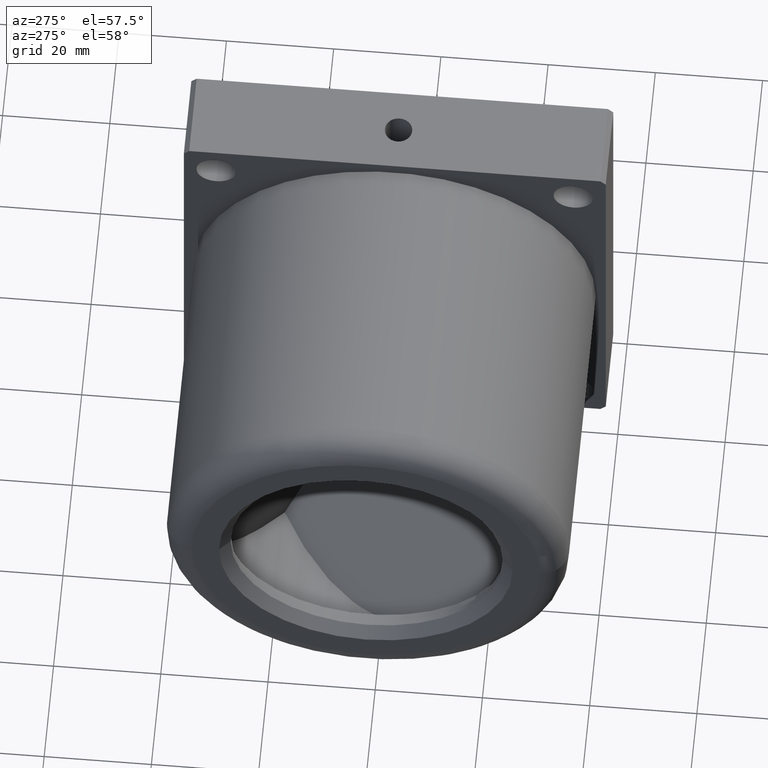
[diagram: clean part render]
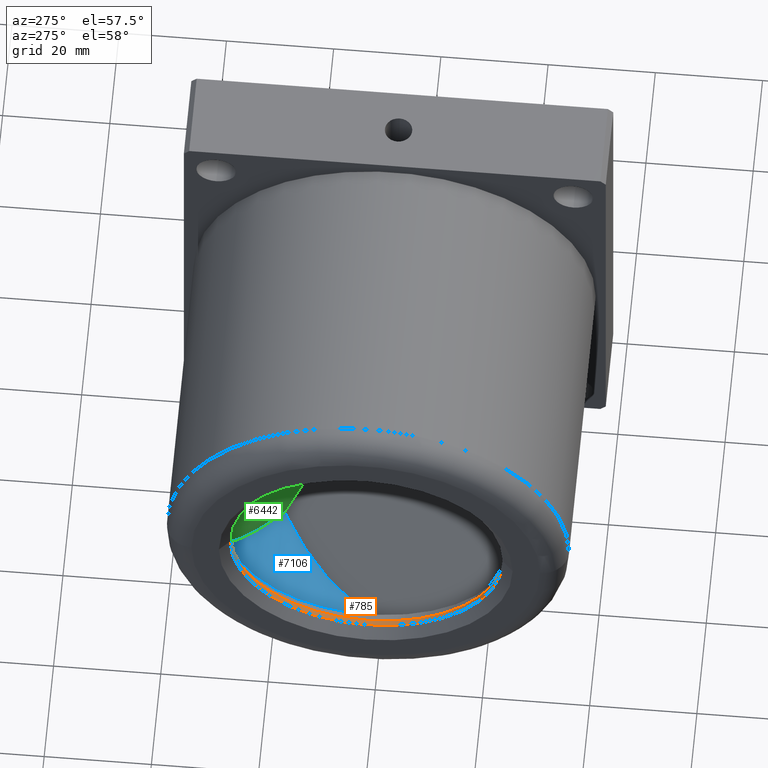
[diagram: same view with three faces highlighted in distinct colors, each labeled with its STEP entity id]
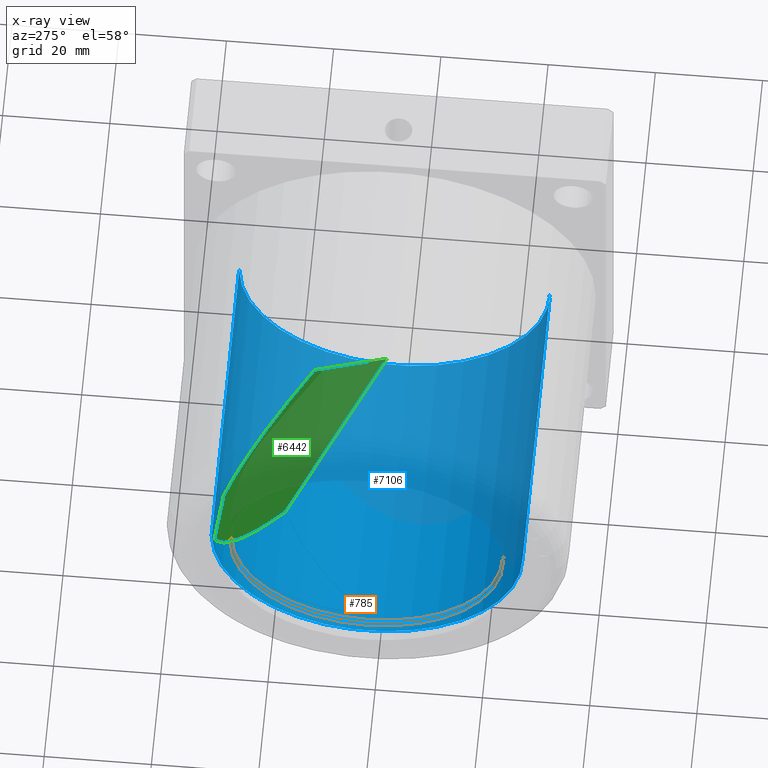
[diagram: x-ray of the same camera — body ghosted, the three highlighted faces saturated]
A machine part, auxiliary view with three faces highlighted in distinct colors.
The next image is the same camera in x-ray (body ghosted, the three faces saturated) — at least one of them is partly hidden behind the body in this view.
Their STEP definitions:

[orange] entity #785 — the highlighted cylindrical surface (partial cylindrical patch) has radius 25.4 mm, axis along (1, 0, 0).
#227 = VERTEX_POINT ( 'NONE', #4538 ) ;
#785 = ADVANCED_FACE ( 'NONE', ( #7465 ), #2046, .F. ) ;
#1187 = DIRECTION ( 'NONE',  ( 1.000000000000000000, 0.0000000000000000000, 0.0000000000000000000 ) ) ;
#1428 = VERTEX_POINT ( 'NONE', #4681 ) ;
#1517 = DIRECTION ( 'NONE',  ( -1.000000000000000000, 0.0000000000000000000, 0.0000000000000000000 ) ) ;
#1819 = CIRCLE ( 'NONE', #7148, 25.39999999999999100 ) ;
#2037 = AXIS2_PLACEMENT_3D ( 'NONE', #7498, #5904, #9985 ) ;
#2046 = CYLINDRICAL_SURFACE ( 'NONE', #2037, 25.39999999999999100 ) ;
#2308 = ORIENTED_EDGE ( 'NONE', *, *, #10763, .T. ) ;
#2668 = EDGE_LOOP ( 'NONE', ( #7154, #4314, #2308, #7152 ) ) ;
#2737 = LINE ( 'NONE', #9313, #6883 ) ;
#3295 = CARTESIAN_POINT ( 'NONE',  ( -76.00000000000000000, -92.65000000000000600, -2.652988939644272500E-013 ) ) ;
#4314 = ORIENTED_EDGE ( 'NONE', *, *, #10563, .T. ) ;
#4538 = CARTESIAN_POINT ( 'NONE',  ( -75.00000000000000000, -143.4499999999999900, 2.961650724498904000E-013 ) ) ;
#4681 = CARTESIAN_POINT ( 'NONE',  ( -76.00000000000000000, -143.4499999999999900, 2.961650724498904000E-013 ) ) ;
#4818 = EDGE_CURVE ( 'NONE', #7382, #1428, #1819, .T. ) ;
#5763 = AXIS2_PLACEMENT_3D ( 'NONE', #6222, #1187, #7030 ) ;
#5904 = DIRECTION ( 'NONE',  ( 1.000000000000000000, 0.0000000000000000000, 0.0000000000000000000 ) ) ;
#6081 = LINE ( 'NONE', #9517, #10198 ) ;
#6222 = CARTESIAN_POINT ( 'NONE',  ( -75.00000000000000000, -118.0500000000000000, 1.387778780781446000E-014 ) ) ;
#6274 = VERTEX_POINT ( 'NONE', #10046 ) ;
#6553 = CARTESIAN_POINT ( 'NONE',  ( -76.00000000000000000, -118.0500000000000000, 1.387778780781446000E-014 ) ) ;
#6883 = VECTOR ( 'NONE', #10104, 1000.000000000000000 ) ;
#7006 = CIRCLE ( 'NONE', #5763, 25.39999999999999100 ) ;
#7030 = DIRECTION ( 'NONE',  ( 0.0000000000000000000, 1.000000000000000000, -1.099120794378904500E-014 ) ) ;
#7041 = DIRECTION ( 'NONE',  ( 1.000000000000000000, 0.0000000000000000000, 0.0000000000000000000 ) ) ;
#7148 = AXIS2_PLACEMENT_3D ( 'NONE', #6553, #1517, #7333 ) ;
#7152 = ORIENTED_EDGE ( 'NONE', *, *, #8381, .F. ) ;
#7154 = ORIENTED_EDGE ( 'NONE', *, *, #4818, .T. ) ;
#7333 = DIRECTION ( 'NONE',  ( 0.0000000000000000000, -1.000000000000000000, 1.099120794378904500E-014 ) ) ;
#7382 = VERTEX_POINT ( 'NONE', #3295 ) ;
#7465 = FACE_OUTER_BOUND ( 'NONE', #2668, .T. ) ;
#7498 = CARTESIAN_POINT ( 'NONE',  ( -27.56659793814429800, -118.0500000000000000, 1.387778780781446000E-014 ) ) ;
#8381 = EDGE_CURVE ( 'NONE', #7382, #6274, #6081, .T. ) ;
#9313 = CARTESIAN_POINT ( 'NONE',  ( -27.56659793814429800, -143.4499999999999900, 2.961650724498903500E-013 ) ) ;
#9517 = CARTESIAN_POINT ( 'NONE',  ( -27.56659793814429800, -92.65000000000000600, -2.652988939644271900E-013 ) ) ;
#9985 = DIRECTION ( 'NONE',  ( 0.0000000000000000000, 1.000000000000000000, -1.099120794378904500E-014 ) ) ;
#10046 = CARTESIAN_POINT ( 'NONE',  ( -75.00000000000000000, -92.65000000000000600, -2.652988939644271900E-013 ) ) ;
#10104 = DIRECTION ( 'NONE',  ( 1.000000000000000000, 0.0000000000000000000, 0.0000000000000000000 ) ) ;
#10198 = VECTOR ( 'NONE', #7041, 1000.000000000000000 ) ;
#10563 = EDGE_CURVE ( 'NONE', #1428, #227, #2737, .T. ) ;
#10763 = EDGE_CURVE ( 'NONE', #227, #6274, #7006, .T. ) ;

[blue] entity #7106 — the highlighted cylindrical surface (partial cylindrical patch) has radius 29 mm, axis along (1, 0, 0).
#93 = EDGE_CURVE ( 'NONE', #598, #370, #5064, .T. ) ;
#370 = VERTEX_POINT ( 'NONE', #10880 ) ;
#440 = CARTESIAN_POINT ( 'NONE',  ( -27.56659793814429800, -147.0500000000000100, 3.361742938952239900E-013 ) ) ;
#598 = VERTEX_POINT ( 'NONE', #9614 ) ;
#660 = AXIS2_PLACEMENT_3D ( 'NONE', #2835, #7758, #1966 ) ;
#811 = EDGE_CURVE ( 'NONE', #7687, #10837, #10881, .T. ) ;
#904 = VECTOR ( 'NONE', #7942, 1000.000000000000000 ) ;
#1175 = ORIENTED_EDGE ( 'NONE', *, *, #811, .F. ) ;
#1316 = DIRECTION ( 'NONE',  ( 1.000000000000000000, 0.0000000000000000000, 0.0000000000000000000 ) ) ;
#1500 = DIRECTION ( 'NONE',  ( 0.0000000000000000000, 1.000000000000000000, -1.099120794378904200E-014 ) ) ;
#1606 = DIRECTION ( 'NONE',  ( 1.000000000000000000, 0.0000000000000000000, 0.0000000000000000000 ) ) ;
#1966 = DIRECTION ( 'NONE',  ( 0.0000000000000000000, 1.000000000000000000, -1.099120794378904200E-014 ) ) ;
#2066 = AXIS2_PLACEMENT_3D ( 'NONE', #9071, #1606, #1500 ) ;
#2214 = DIRECTION ( 'NONE',  ( 1.000000000000000000, 0.0000000000000000000, 0.0000000000000000000 ) ) ;
#2628 = CARTESIAN_POINT ( 'NONE',  ( -75.00000000000000000, -147.0500000000000100, 3.361742938952238900E-013 ) ) ;
#2835 = CARTESIAN_POINT ( 'NONE',  ( -16.30000000000000100, -118.0500000000000000, 1.387778780781446000E-014 ) ) ;
#2990 = EDGE_CURVE ( 'NONE', #7687, #598, #9627, .T. ) ;
#3027 = VECTOR ( 'NONE', #1316, 1000.000000000000000 ) ;
#3091 = ORIENTED_EDGE ( 'NONE', *, *, #2990, .T. ) ;
#3873 = EDGE_CURVE ( 'NONE', #10837, #370, #7555, .T. ) ;
#3927 = CARTESIAN_POINT ( 'NONE',  ( -27.56659793814429800, -118.0500000000000000, 1.387778780781446000E-014 ) ) ;
#4794 = ORIENTED_EDGE ( 'NONE', *, *, #3873, .F. ) ;
#5064 = CIRCLE ( 'NONE', #660, 28.99999999999999600 ) ;
#5946 = CYLINDRICAL_SURFACE ( 'NONE', #9338, 28.99999999999999600 ) ;
#6958 = FACE_OUTER_BOUND ( 'NONE', #10099, .T. ) ;
#7102 = CARTESIAN_POINT ( 'NONE',  ( -75.00000000000000000, -89.04999999999999700, -3.048672425620677300E-013 ) ) ;
#7106 = ADVANCED_FACE ( 'NONE', ( #6958 ), #5946, .F. ) ;
#7212 = DIRECTION ( 'NONE',  ( 0.0000000000000000000, 1.000000000000000000, -1.099120794378904200E-014 ) ) ;
#7555 = LINE ( 'NONE', #9557, #904 ) ;
#7687 = VERTEX_POINT ( 'NONE', #2628 ) ;
#7758 = DIRECTION ( 'NONE',  ( 1.000000000000000000, 0.0000000000000000000, 0.0000000000000000000 ) ) ;
#7942 = DIRECTION ( 'NONE',  ( 1.000000000000000000, 0.0000000000000000000, 0.0000000000000000000 ) ) ;
#9071 = CARTESIAN_POINT ( 'NONE',  ( -75.00000000000000000, -118.0500000000000000, 1.387778780781446000E-014 ) ) ;
#9338 = AXIS2_PLACEMENT_3D ( 'NONE', #3927, #2214, #7212 ) ;
#9557 = CARTESIAN_POINT ( 'NONE',  ( -27.56659793814429800, -89.04999999999999700, -3.048672425620677300E-013 ) ) ;
#9614 = CARTESIAN_POINT ( 'NONE',  ( -16.30000000000000100, -147.0500000000000100, 3.361742938952238900E-013 ) ) ;
#9627 = LINE ( 'NONE', #440, #3027 ) ;
#10099 = EDGE_LOOP ( 'NONE', ( #1175, #3091, #10183, #4794 ) ) ;
#10183 = ORIENTED_EDGE ( 'NONE', *, *, #93, .T. ) ;
#10837 = VERTEX_POINT ( 'NONE', #7102 ) ;
#10880 = CARTESIAN_POINT ( 'NONE',  ( -16.30000000000000100, -89.04999999999999700, -3.048672425620677300E-013 ) ) ;
#10881 = CIRCLE ( 'NONE', #2066, 28.99999999999999600 ) ;

[green] entity #6442 — the highlighted planar face has unit normal (0.5774, 0.8113, 0.0917).
#192 = DIRECTION ( 'NONE',  ( 0.5773501500826875300, 0.8113282649038601200, 0.09172377427684773300 ) ) ;
#451 = VERTEX_POINT ( 'NONE', #1135 ) ;
#839 = EDGE_CURVE ( 'NONE', #4246, #7489, #2451, .T. ) ;
#857 = AXIS2_PLACEMENT_3D ( 'NONE', #5308, #192, #6121 ) ;
#1135 = CARTESIAN_POINT ( 'NONE',  ( -73.00000000000009900, -89.41449990827801700, -4.583463155408660200 ) ) ;
#1328 = VERTEX_POINT ( 'NONE', #5188 ) ;
#1491 = CARTESIAN_POINT ( 'NONE',  ( -70.08381284998229400, -90.63068514129618300, -12.18166372358545000 ) ) ;
#2074 = CARTESIAN_POINT ( 'NONE',  ( -63.41821090404296500, -99.40910120095331600, 23.51018184444683000 ) ) ;
#2451 = LINE ( 'NONE', #4991, #4700 ) ;
#2946 = CARTESIAN_POINT ( 'NONE',  ( -70.08381284998243600, -94.04234961799878100, 17.99567952400946100 ) ) ;
#3190 = CARTESIAN_POINT ( 'NONE',  ( -33.48779399999985200, -118.0500000000000300, 3.680720412884874900E-014 ) ) ;
#3270 = DIRECTION ( 'NONE',  ( -0.5773503882965640400, 0.4850991510310596600, -0.6567688655857186800 ) ) ;
#3294 = CARTESIAN_POINT ( 'NONE',  ( -53.99389699999980500, -100.8204399998675000, -23.32685710081478800 ) ) ;
#3423 = EDGE_CURVE ( 'NONE', #451, #7489, #10006, .T. ) ;
#3569 = VECTOR ( 'NONE', #5761, 1000.000000000000100 ) ;
#4246 = VERTEX_POINT ( 'NONE', #3190 ) ;
#4340 = ORIENTED_EDGE ( 'NONE', *, *, #8967, .T. ) ;
#4700 = VECTOR ( 'NONE', #3270, 1000.000000000000100 ) ;
#4792 = VECTOR ( 'NONE', #9448, 999.9999999999998900 ) ;
#4858 = EDGE_CURVE ( 'NONE', #1328, #451, #10411, .T. ) ;
#4946 = CARTESIAN_POINT ( 'NONE',  ( -73.00000000000014200, -90.28751505764449800, 3.138655476915256600 ) ) ;
#4991 = CARTESIAN_POINT ( 'NONE',  ( -28.00296304814972000, -122.6584438362319100, 6.239306797392695900 ) ) ;
#5188 = CARTESIAN_POINT ( 'NONE',  ( -73.00000000000019900, -91.16053020701102100, 10.86077410923983800 ) ) ;
#5231 = CARTESIAN_POINT ( 'NONE',  ( -53.99389699999986200, -106.4631291603113500, 26.58466520655016700 ) ) ;
#5308 = CARTESIAN_POINT ( 'NONE',  ( -22.51813435933258500, -125.7576185165867000, -0.8713758556300186300 ) ) ;
#5593 =( BOUNDED_CURVE ( )  B_SPLINE_CURVE ( 3, ( #9520, #2074, #2946, #8708 ),
 .UNSPECIFIED., .F., .T. ) 
 B_SPLINE_CURVE_WITH_KNOTS ( ( 4, 4 ),
 ( 2.094395102393196200, 2.870300831158593800 ),
 .UNSPECIFIED. ) 
 CURVE ( )  GEOMETRIC_REPRESENTATION_ITEM ( )  RATIONAL_B_SPLINE_CURVE ( ( 1.000000000000000000, 0.9504569456815726800, 0.9504569456815726800, 1.000000000000000000 ) ) 
 REPRESENTATION_ITEM ( '' )  );
#5623 = ORIENTED_EDGE ( 'NONE', *, *, #3423, .T. ) ;
#5761 = DIRECTION ( 'NONE',  ( 6.023870078311820900E-015, 0.1123382105426011000, -0.9936700289593554100 ) ) ;
#5766 = ORIENTED_EDGE ( 'NONE', *, *, #6600, .T. ) ;
#6121 = DIRECTION ( 'NONE',  ( -0.7745967651207065200, 0.5797798432887021300, -0.2526958345138774500 ) ) ;
#6442 = ADVANCED_FACE ( 'NONE', ( #6872 ), #6875, .F. ) ;
#6517 = CARTESIAN_POINT ( 'NONE',  ( -53.99389699999980500, -100.8204399998675000, -23.32685710081478800 ) ) ;
#6600 = EDGE_CURVE ( 'NONE', #9159, #1328, #5593, .T. ) ;
#6872 = FACE_OUTER_BOUND ( 'NONE', #8192, .T. ) ;
#6875 = PLANE ( 'NONE',  #857 ) ;
#7358 = CARTESIAN_POINT ( 'NONE',  ( -73.00000000000009900, -89.41449990827801700, -4.583463155408660200 ) ) ;
#7489 = VERTEX_POINT ( 'NONE', #6517 ) ;
#7833 = ORIENTED_EDGE ( 'NONE', *, *, #4858, .T. ) ;
#8192 = EDGE_LOOP ( 'NONE', ( #5766, #7833, #5623, #10387, #4340 ) ) ;
#8212 = CARTESIAN_POINT ( 'NONE',  ( -63.41821090404279500, -94.63084532509435600, -18.75513137005706100 ) ) ;
#8409 = CARTESIAN_POINT ( 'NONE',  ( -28.00296304814969900, -121.1491762704311000, -7.110682832786923600 ) ) ;
#8708 = CARTESIAN_POINT ( 'NONE',  ( -73.00000000000019900, -91.16053020701102100, 10.86077410923983800 ) ) ;
#8967 = EDGE_CURVE ( 'NONE', #4246, #9159, #9134, .T. ) ;
#9134 = LINE ( 'NONE', #8409, #4792 ) ;
#9159 = VERTEX_POINT ( 'NONE', #5231 ) ;
#9448 = DIRECTION ( 'NONE',  ( -0.5773503882965646000, 0.3262289464963902800, 0.7484926209400206700 ) ) ;
#9520 = CARTESIAN_POINT ( 'NONE',  ( -53.99389699999986200, -106.4631291603113500, 26.58466520655016700 ) ) ;
#10006 =( BOUNDED_CURVE ( )  B_SPLINE_CURVE ( 3, ( #7358, #1491, #8212, #3294 ),
 .UNSPECIFIED., .F., .F. ) 
 B_SPLINE_CURVE_WITH_KNOTS ( ( 4, 4 ),
 ( 3.412884476021001800, 4.188790204786393200 ),
 .UNSPECIFIED. ) 
 CURVE ( )  GEOMETRIC_REPRESENTATION_ITEM ( )  RATIONAL_B_SPLINE_CURVE ( ( 1.000000000000000000, 0.9504569456815735700, 0.9504569456815735700, 1.000000000000000000 ) ) 
 REPRESENTATION_ITEM ( '' )  );
#10387 = ORIENTED_EDGE ( 'NONE', *, *, #839, .F. ) ;
#10411 = LINE ( 'NONE', #4946, #3569 ) ;